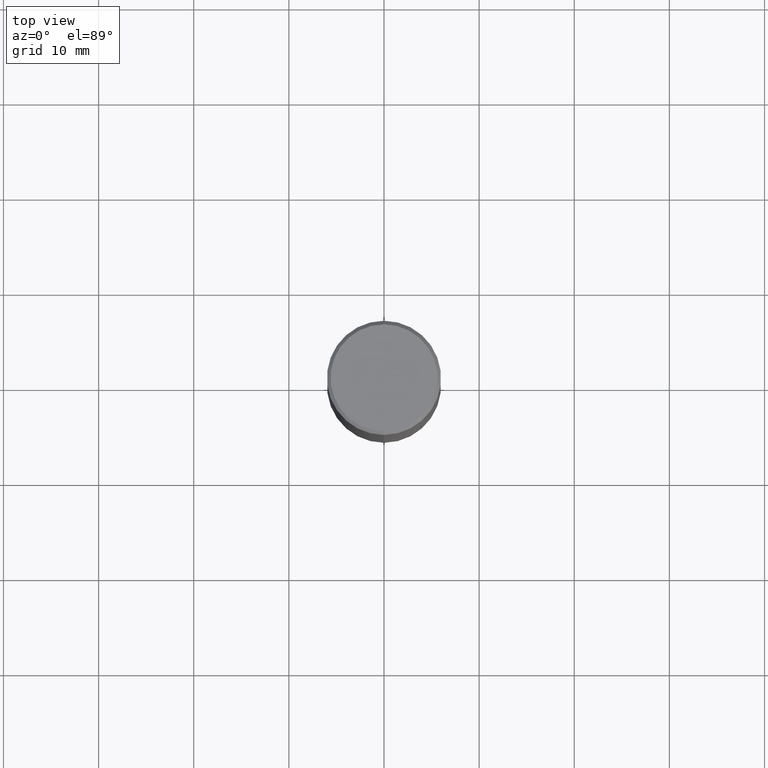
[diagram: clean part render]
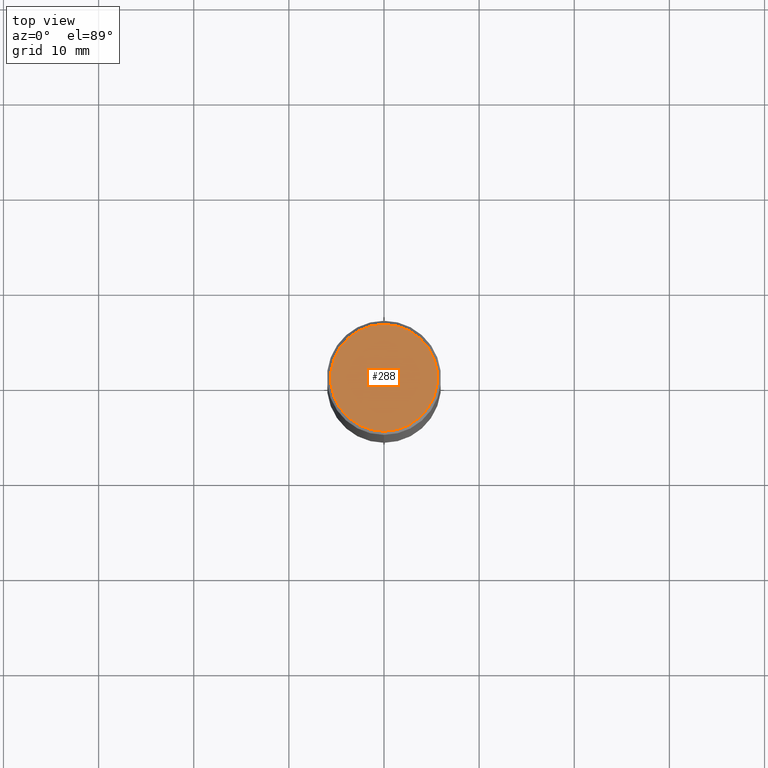
[diagram: same view with one face highlighted and labeled with its STEP entity id]
A machine part, top view. The second image highlights one B-rep face of the part: STEP entity #288.
In plain terms, the highlighted planar face has unit normal (0, -0, -1).
Its self-contained STEP definition (entity closure, byte-faithful):
#21 = CARTESIAN_POINT ( 'NONE',  ( -5.285488949794086623E-45, 7.545184629615168161E-31, 2.161183497362751472E-16 ) ) ;
#24 = CARTESIAN_POINT ( 'NONE',  ( -1.568995892090348679E-15, -0.2211999999999999800, 9.883780130677397050E-16 ) ) ;
#47 = AXIS2_PLACEMENT_3D ( 'NONE', #307, #465, #85 ) ;
#68 = CARTESIAN_POINT ( 'NONE',  ( 1.597003564386849249E-15, 0.2211999999999999800, -5.561413135951892626E-16 ) ) ;
#85 = DIRECTION ( 'NONE',  ( 6.982962677686265922E-15, 1.000000000000000000, -3.491228134409875712E-15 ) ) ;
#95 = DIRECTION ( 'NONE',  ( -2.445645617895871651E-29, 3.491228134409875712E-15, 1.000000000000000000 ) ) ;
#133 = CIRCLE ( 'NONE', #411, 0.2211999999999999800 ) ;
#136 = DIRECTION ( 'NONE',  ( -2.445645617895871651E-29, 3.491228134409875712E-15, 1.000000000000000000 ) ) ;
#169 = AXIS2_PLACEMENT_3D ( 'NONE', #205, #95, #212 ) ;
#192 = EDGE_LOOP ( 'NONE', ( #339, #341 ) ) ;
#202 = PLANE ( 'NONE',  #47 ) ;
#205 = CARTESIAN_POINT ( 'NONE',  ( -5.285488949794086623E-45, 7.545184629615168161E-31, 2.161183497362751472E-16 ) ) ;
#212 = DIRECTION ( 'NONE',  ( -6.982962677686266711E-15, -1.000000000000000000, 3.491228134409875712E-15 ) ) ;
#288 = ADVANCED_FACE ( 'NONE', ( #302 ), #202, .F. ) ;
#302 = FACE_OUTER_BOUND ( 'NONE', #192, .T. ) ;
#307 = CARTESIAN_POINT ( 'NONE',  ( 1.544631344304201972E-15, 0.2211999999999999800, -6.642004884633268978E-16 ) ) ;
#339 = ORIENTED_EDGE ( 'NONE', *, *, #438, .T. ) ;
#341 = ORIENTED_EDGE ( 'NONE', *, *, #475, .T. ) ;
#363 = CIRCLE ( 'NONE', #169, 0.2211999999999999800 ) ;
#411 = AXIS2_PLACEMENT_3D ( 'NONE', #21, #136, #445 ) ;
#438 = EDGE_CURVE ( 'NONE', #472, #439, #133, .T. ) ;
#439 = VERTEX_POINT ( 'NONE', #24 ) ;
#445 = DIRECTION ( 'NONE',  ( -6.982962677686266711E-15, -1.000000000000000000, 3.491228134409875712E-15 ) ) ;
#465 = DIRECTION ( 'NONE',  ( 2.445645617895871091E-29, -3.491228134409875712E-15, -1.000000000000000000 ) ) ;
#472 = VERTEX_POINT ( 'NONE', #68 ) ;
#475 = EDGE_CURVE ( 'NONE', #439, #472, #363, .T. ) ;